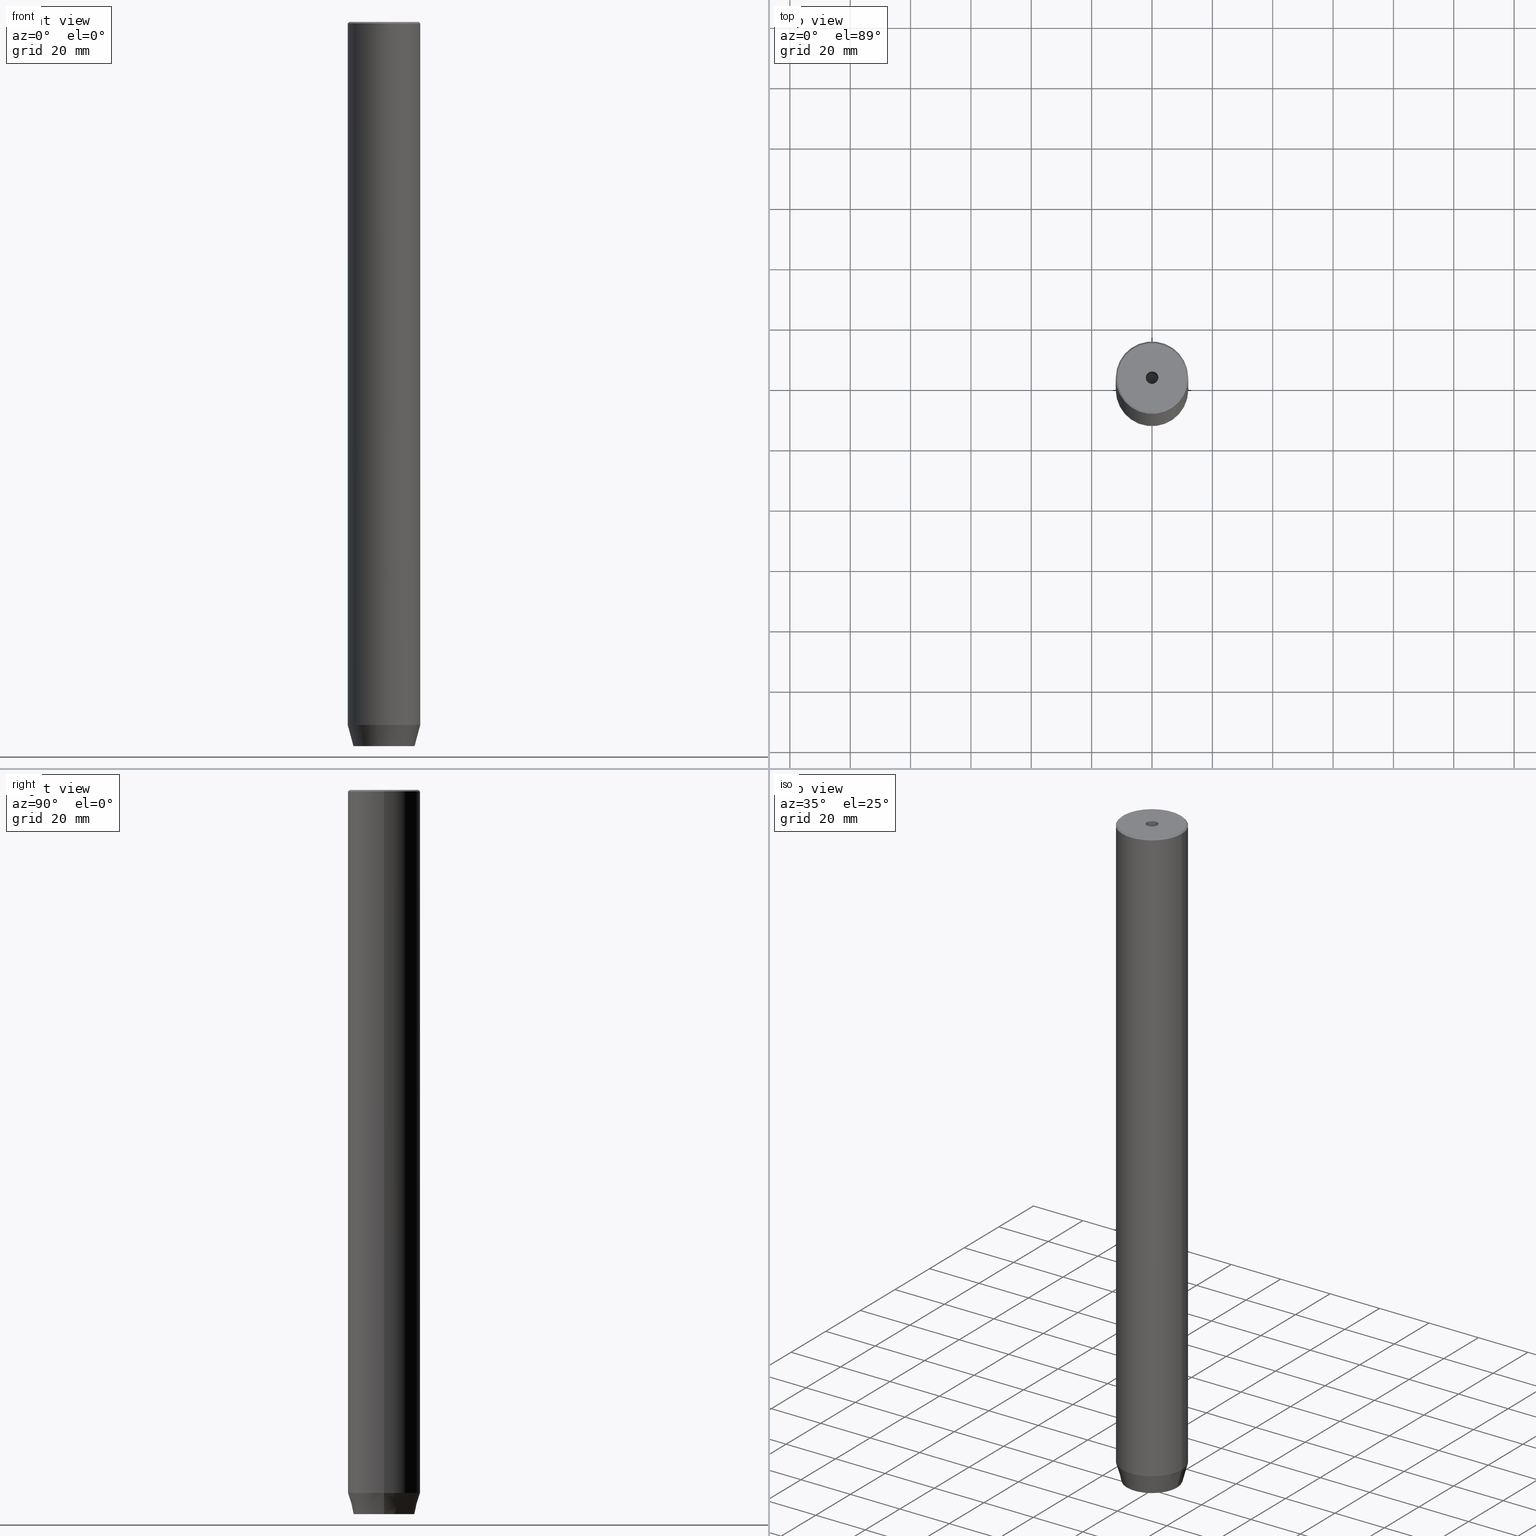
[diagram: canonical four-view strip — front | top / right | iso, engineering-drawing reading convention]
A machine part, canonical four-view strip (front | top / right | iso — engineering-drawing reading convention). The complete STEP part file that produces these views, byte-faithful:
ISO-10303-21;
HEADER;
FILE_DESCRIPTION (( 'STEP AP203' ),
    '1' );
FILE_NAME ('4e11.STEP',
    '2024-01-02T17:14:03',
    ( '' ),
    ( '' ),
    'SwSTEP 2.0',
    'SolidWorks 2019',
    '' );
FILE_SCHEMA (( 'CONFIG_CONTROL_DESIGN' ));
ENDSEC;

DATA;
#1 = DIRECTION ( 'NONE',  ( 1.000000000000000000, 0.000000000000000000, 0.000000000000000000 ) ) ;
#2 = DIRECTION ( 'NONE',  ( -0.000000000000000000, -0.000000000000000000, 1.000000000000000000 ) ) ;
#3 = DIRECTION ( 'NONE',  ( 1.000000000000000000, 0.000000000000000000, 0.000000000000000000 ) ) ;
#4 = ORIENTED_EDGE ( 'NONE', *, *, #515, .T. ) ;
#5 = ADVANCED_FACE ( 'NONE', ( #173 ), #56, .T. ) ;
#6 = DIRECTION ( 'NONE',  ( 1.000000000000000000, 0.000000000000000000, 0.000000000000000000 ) ) ;
#7 = VERTEX_POINT ( 'NONE', #294 ) ;
#8 = DIRECTION ( 'NONE',  ( 1.000000000000000000, 0.000000000000000000, 0.000000000000000000 ) ) ;
#9 = PERSON_AND_ORGANIZATION ( #483, #206 ) ;
#10 = EDGE_CURVE ( 'NONE', #177, #214, #108, .T. ) ;
#11 = VERTEX_POINT ( 'NONE', #81 ) ;
#12 = LOCAL_TIME ( 18, 14, 3.000000000000000000, #89 ) ;
#13 = PERSON_AND_ORGANIZATION_ROLE ( 'creator' ) ;
#14 = ORIENTED_EDGE ( 'NONE', *, *, #345, .F. ) ;
#15 = PERSON_AND_ORGANIZATION ( #483, #206 ) ;
#16 = ADVANCED_FACE ( 'NONE', ( #502 ), #346, .F. ) ;
#17 = VERTEX_POINT ( 'NONE', #356 ) ;
#18 = CARTESIAN_POINT ( 'NONE',  ( -2.000000000000000000, 3.464101615137754830, -237.1999999999999886 ) ) ;
#19 = PRODUCT_RELATED_PRODUCT_CATEGORY ( 'detail', '', ( #42 ) ) ;
#20 = VECTOR ( 'NONE', #73, 1000.000000000000114 ) ;
#21 = APPROVAL_PERSON_ORGANIZATION ( #491, #109, #570 ) ;
#22 = ORIENTED_EDGE ( 'NONE', *, *, #466, .T. ) ;
#23 = VECTOR ( 'NONE', #215, 999.9999999999998863 ) ;
#24 = ORIENTED_EDGE ( 'NONE', *, *, #542, .F. ) ;
#25 = FACE_OUTER_BOUND ( 'NONE', #306, .T. ) ;
#26 = DIRECTION ( 'NONE',  ( -1.000000000000000000, 0.000000000000000000, 0.000000000000000000 ) ) ;
#27 = ADVANCED_FACE ( 'NONE', ( #389 ), #227, .F. ) ;
#28 = LINE ( 'NONE', #341, #77 ) ;
#29 = VECTOR ( 'NONE', #287, 1000.000000000000000 ) ;
#30 = DIRECTION ( 'NONE',  ( -0.000000000000000000, -0.000000000000000000, -1.000000000000000000 ) ) ;
#31 = DIRECTION ( 'NONE',  ( 0.000000000000000000, -0.000000000000000000, 1.000000000000000000 ) ) ;
#32 = VERTEX_POINT ( 'NONE', #241 ) ;
#33 = DIRECTION ( 'NONE',  ( -0.8660254037844384856, 0.5000000000000002220, 0.000000000000000000 ) ) ;
#34 = EDGE_CURVE ( 'NONE', #507, #17, #427, .T. ) ;
#35 = DIRECTION ( 'NONE',  ( -0.000000000000000000, -0.000000000000000000, 1.000000000000000000 ) ) ;
#36 = DIRECTION ( 'NONE',  ( 1.000000000000000000, 0.000000000000000000, 0.000000000000000000 ) ) ;
#37 = VERTEX_POINT ( 'NONE', #302 ) ;
#38 = CARTESIAN_POINT ( 'NONE',  ( -12.00000000000000000, 1.469576158976823947E-15, -232.9999999999999716 ) ) ;
#39 = DIRECTION ( 'NONE',  ( -0.000000000000000000, -0.000000000000000000, 1.000000000000000000 ) ) ;
#40 = ORIENTED_EDGE ( 'NONE', *, *, #34, .T. ) ;
#41 = AXIS2_PLACEMENT_3D ( 'NONE', #88, #232, #187 ) ;
#42 = PRODUCT ( '4e11', '4e11', '', ( #197 ) ) ;
#43 = CARTESIAN_POINT ( 'NONE',  ( 0.000000000000000000, 0.000000000000000000, -1.990051048614449116E-16 ) ) ;
#44 = CC_DESIGN_PERSON_AND_ORGANIZATION_ASSIGNMENT ( #49, #13, ( #147 ) ) ;
#45 = DIRECTION ( 'NONE',  ( 1.000000000000000000, 0.000000000000000000, 0.000000000000000000 ) ) ;
#46 = APPROVAL_ROLE ( '' ) ;
#47 = CIRCLE ( 'NONE', #300, 12.00000000000000000 ) ;
#48 = AXIS2_PLACEMENT_3D ( 'NONE', #117, #76, #8 ) ;
#49 = PERSON_AND_ORGANIZATION ( #483, #206 ) ;
#50 = EDGE_CURVE ( 'NONE', #273, #210, #28, .T. ) ;
#51 = DATE_TIME_ROLE ( 'creation_date' ) ;
#52 = CARTESIAN_POINT ( 'NONE',  ( -4.000000000000000000, 2.309401076758503368, -240.0000000000000000 ) ) ;
#53 = VECTOR ( 'NONE', #457, 999.9999999999998863 ) ;
#54 = CIRCLE ( 'NONE', #511, 2.099999999999994760 ) ;
#55 = CALENDAR_DATE ( 2024, 2, 1 ) ;
#56 = CONICAL_SURFACE ( 'NONE', #331, 12.00000000000000000, 0.2617993877991500740 ) ;
#57 = ADVANCED_FACE ( 'NONE', ( #393 ), #124, .F. ) ;
#58 = ORIENTED_EDGE ( 'NONE', *, *, #282, .T. ) ;
#59 = FACE_OUTER_BOUND ( 'NONE', #555, .T. ) ;
#60 = ORIENTED_EDGE ( 'NONE', *, *, #196, .F. ) ;
#61 = CARTESIAN_POINT ( 'NONE',  ( -12.00000000000000000, 1.469576158976823947E-15, -232.9999999999999716 ) ) ;
#62 = ORIENTED_EDGE ( 'NONE', *, *, #450, .T. ) ;
#63 = VERTEX_POINT ( 'NONE', #125 ) ;
#64 = LOCAL_TIME ( 18, 14, 3.000000000000000000, #368 ) ;
#65 = EDGE_LOOP ( 'NONE', ( #342, #268, #244, #516 ) ) ;
#66 = EDGE_CURVE ( 'NONE', #273, #249, #303, .T. ) ;
#67 = CARTESIAN_POINT ( 'NONE',  ( 0.000000000000000000, 4.618802153517006737, -237.1999999999999886 ) ) ;
#68 = CARTESIAN_POINT ( 'NONE',  ( -4.000000000000000000, 0.000000000000000000, -237.1999999999999886 ) ) ;
#69 = ORIENTED_EDGE ( 'NONE', *, *, #551, .F. ) ;
#70 = VECTOR ( 'NONE', #231, 1000.000000000000000 ) ;
#71 = LINE ( 'NONE', #262, #384 ) ;
#72 = VECTOR ( 'NONE', #33, 1000.000000000000114 ) ;
#73 = DIRECTION ( 'NONE',  ( -0.8660254037844384856, 0.5000000000000002220, 0.000000000000000000 ) ) ;
#74 = EDGE_LOOP ( 'NONE', ( #62, #473, #308, #103 ) ) ;
#75 = EDGE_CURVE ( 'NONE', #32, #7, #417, .T. ) ;
#76 = DIRECTION ( 'NONE',  ( 0.000000000000000000, 0.000000000000000000, 1.000000000000000000 ) ) ;
#77 = VECTOR ( 'NONE', #293, 1000.000000000000000 ) ;
#78 = EDGE_LOOP ( 'NONE', ( #463, #413, #531, #358 ) ) ;
#79 = CARTESIAN_POINT ( 'NONE',  ( -2.000000000000000000, 3.464101615137754830, -237.1999999999999886 ) ) ;
#80 = DIRECTION ( 'NONE',  ( 1.000000000000000000, 0.000000000000000000, 0.000000000000000000 ) ) ;
#81 = CARTESIAN_POINT ( 'NONE',  ( -4.000000000000000000, -2.309401076758503368, -240.0000000000000000 ) ) ;
#82 = DIRECTION ( 'NONE',  ( -0.000000000000000000, -0.000000000000000000, 1.000000000000000000 ) ) ;
#83 = CARTESIAN_POINT ( 'NONE',  ( 0.000000000000000000, 0.000000000000000000, 0.000000000000000000 ) ) ;
#84 = EDGE_CURVE ( 'NONE', #150, #475, #377, .T. ) ;
#85 = CARTESIAN_POINT ( 'NONE',  ( -4.000000000000000000, -2.309401076758503368, -237.1999999999999886 ) ) ;
#86 = CARTESIAN_POINT ( 'NONE',  ( 0.000000000000000000, 0.000000000000000000, -240.0000000000000000 ) ) ;
#87 = ORIENTED_EDGE ( 'NONE', *, *, #515, .F. ) ;
#88 = CARTESIAN_POINT ( 'NONE',  ( 0.000000000000000000, 0.000000000000000000, 0.000000000000000000 ) ) ;
#89 = COORDINATED_UNIVERSAL_TIME_OFFSET ( 1, 0, .AHEAD. ) ;
#90 = LINE ( 'NONE', #549, #72 ) ;
#91 = DIRECTION ( 'NONE',  ( 0.5000000000000003331, -0.8660254037844385966, 0.000000000000000000 ) ) ;
#92 = APPLICATION_CONTEXT ( 'configuration controlled 3d designs of mechanical parts and assemblies' ) ;
#93 = EDGE_CURVE ( 'NONE', #387, #7, #353, .T. ) ;
#94 = CONICAL_SURFACE ( 'NONE', #289, 11.50000000000000888, 0.7853981633974621568 ) ;
#95 = CARTESIAN_POINT ( 'NONE',  ( 4.000000000000000000, -2.309401076758502480, -240.0000000000000000 ) ) ;
#96 = ADVANCED_FACE ( 'NONE', ( #295 ), #424, .F. ) ;
#97 = PERSON_AND_ORGANIZATION_ROLE ( 'creator' ) ;
#98 = CARTESIAN_POINT ( 'NONE',  ( 0.000000000000000000, 0.000000000000000000, 0.000000000000000000 ) ) ;
#99 = VECTOR ( 'NONE', #360, 1000.000000000000000 ) ;
#100 = VERTEX_POINT ( 'NONE', #426 ) ;
#101 = EDGE_LOOP ( 'NONE', ( #458, #69, #438, #184, #425, #464 ) ) ;
#102 = LINE ( 'NONE', #128, #429 ) ;
#103 = ORIENTED_EDGE ( 'NONE', *, *, #307, .T. ) ;
#104 = ADVANCED_FACE ( 'NONE', ( #25 ), #343, .T. ) ;
#105 = PLANE ( 'NONE',  #498 ) ;
#106 = CIRCLE ( 'NONE', #568, 12.00000000000000000 ) ;
#107 = AXIS2_PLACEMENT_3D ( 'NONE', #43, #404, #180 ) ;
#108 = LINE ( 'NONE', #403, #441 ) ;
#109 = APPROVAL ( #213, 'NEUR�EN�' ) ;
#110 = DIRECTION ( 'NONE',  ( -0.5000000000000003331, -0.8660254037844385966, 0.000000000000000000 ) ) ;
#111 = FACE_OUTER_BOUND ( 'NONE', #586, .T. ) ;
#112 = ORIENTED_EDGE ( 'NONE', *, *, #50, .F. ) ;
#113 = CARTESIAN_POINT ( 'NONE',  ( 0.000000000000000000, 0.000000000000000000, -30.00000000000000000 ) ) ;
#114 = EDGE_CURVE ( 'NONE', #374, #177, #162, .T. ) ;
#115 = DIRECTION ( 'NONE',  ( -0.000000000000000000, -0.000000000000000000, 1.000000000000000000 ) ) ;
#116 = ORIENTED_EDGE ( 'NONE', *, *, #225, .F. ) ;
#117 = CARTESIAN_POINT ( 'NONE',  ( 0.000000000000000000, 0.000000000000000000, 0.000000000000000000 ) ) ;
#118 = DIRECTION ( 'NONE',  ( 0.000000000000000000, 0.000000000000000000, -1.000000000000000000 ) ) ;
#119 = CIRCLE ( 'NONE', #535, 11.50000000000000888 ) ;
#120 = CARTESIAN_POINT ( 'NONE',  ( 0.000000000000000000, 0.000000000000000000, 0.000000000000000000 ) ) ;
#121 = CC_DESIGN_APPROVAL ( #415, ( #147 ) ) ;
#122 = DIRECTION ( 'NONE',  ( -0.000000000000000000, -0.000000000000000000, 1.000000000000000000 ) ) ;
#123 = ORIENTED_EDGE ( 'NONE', *, *, #132, .T. ) ;
#124 = CONICAL_SURFACE ( 'NONE', #209, 2.099999999999994760, 1.029744258676652535 ) ;
#125 = CARTESIAN_POINT ( 'NONE',  ( 10.12435565298213547, 0.000000000000000000, -240.0000000000000000 ) ) ;
#126 = DIRECTION ( 'NONE',  ( -0.000000000000000000, -0.000000000000000000, -1.000000000000000000 ) ) ;
#127 = DIRECTION ( 'NONE',  ( 0.000000000000000000, 1.000000000000000000, 0.000000000000000000 ) ) ;
#128 = CARTESIAN_POINT ( 'NONE',  ( 12.00000000000000000, 0.000000000000000000, -232.9999999999999716 ) ) ;
#129 = CYLINDRICAL_SURFACE ( 'NONE', #41, 12.00000000000000000 ) ;
#130 = ORIENTED_EDGE ( 'NONE', *, *, #259, .T. ) ;
#131 = DIRECTION ( 'NONE',  ( -0.000000000000000000, -0.000000000000000000, 1.000000000000000000 ) ) ;
#132 = EDGE_CURVE ( 'NONE', #348, #151, #292, .T. ) ;
#133 = LINE ( 'NONE', #443, #439 ) ;
#134 = CARTESIAN_POINT ( 'NONE',  ( -4.000000000000000000, 0.000000000000000000, -240.0000000000000000 ) ) ;
#135 = EDGE_LOOP ( 'NONE', ( #378, #571, #462 ) ) ;
#136 = VECTOR ( 'NONE', #82, 1000.000000000000000 ) ;
#137 = CONICAL_SURFACE ( 'NONE', #193, 11.50000000000000888, 0.7853981633974621568 ) ;
#138 = ORIENTED_EDGE ( 'NONE', *, *, #307, .F. ) ;
#139 = DIRECTION ( 'NONE',  ( -0.5000000000000000000, 0.8660254037844387076, 0.000000000000000000 ) ) ;
#140 = APPROVAL_ROLE ( '' ) ;
#141 = CARTESIAN_POINT ( 'NONE',  ( 0.000000000000000000, 0.000000000000000000, -240.0000000000000000 ) ) ;
#142 = ADVANCED_FACE ( 'NONE', ( #164, #522 ), #105, .T. ) ;
#143 = CARTESIAN_POINT ( 'NONE',  ( 2.099999999999994760, 0.000000000000000000, -30.00000000000000000 ) ) ;
#144 = DIRECTION ( 'NONE',  ( 0.000000000000000000, -1.000000000000000000, 0.000000000000000000 ) ) ;
#145 = AXIS2_PLACEMENT_3D ( 'NONE', #412, #324, #45 ) ;
#146 = DIRECTION ( 'NONE',  ( -0.000000000000000000, -0.000000000000000000, -1.000000000000000000 ) ) ;
#147 = PRODUCT_DEFINITION ( 'NEZN�M�', '', #440, #410 ) ;
#148 = ORIENTED_EDGE ( 'NONE', *, *, #320, .F. ) ;
#149 = LINE ( 'NONE', #513, #398 ) ;
#150 = VERTEX_POINT ( 'NONE', #527 ) ;
#151 = VERTEX_POINT ( 'NONE', #260 ) ;
#152 = ORIENTED_EDGE ( 'NONE', *, *, #542, .T. ) ;
#153 = AXIS2_PLACEMENT_3D ( 'NONE', #141, #448, #198 ) ;
#154 = AXIS2_PLACEMENT_3D ( 'NONE', #83, #31, #478 ) ;
#155 = CLOSED_SHELL ( 'NONE', ( #388, #57, #572, #359, #493, #142, #566, #327, #5, #369, #16, #217, #96, #27, #185, #501, #104, #250, #381 ) ) ;
#156 = APPLICATION_CONTEXT ( 'configuration controlled 3d designs of mechanical parts and assemblies' ) ;
#157 = EDGE_LOOP ( 'NONE', ( #544, #58, #167, #112 ) ) ;
#158 = PERSON_AND_ORGANIZATION ( #483, #206 ) ;
#159 = EDGE_CURVE ( 'NONE', #257, #11, #269, .T. ) ;
#160 = LINE ( 'NONE', #61, #29 ) ;
#161 = ORIENTED_EDGE ( 'NONE', *, *, #466, .F. ) ;
#162 = LINE ( 'NONE', #422, #199 ) ;
#163 = CC_DESIGN_PERSON_AND_ORGANIZATION_ASSIGNMENT ( #335, #518, ( #399 ) ) ;
#164 = FACE_BOUND ( 'NONE', #101, .T. ) ;
#165 = AXIS2_PLACEMENT_3D ( 'NONE', #251, #118, #254 ) ;
#166 = DIRECTION ( 'NONE',  ( -0.8660254037844385966, -0.4999999999999999445, 0.000000000000000000 ) ) ;
#167 = ORIENTED_EDGE ( 'NONE', *, *, #409, .T. ) ;
#168 = CARTESIAN_POINT ( 'NONE',  ( -11.50000000000000888, 0.000000000000000000, 0.000000000000000000 ) ) ;
#169 = EDGE_CURVE ( 'NONE', #569, #214, #497, .T. ) ;
#170 = DIRECTION ( 'NONE',  ( 1.000000000000000000, 0.000000000000000000, 0.000000000000000000 ) ) ;
#171 = DIRECTION ( 'NONE',  ( 1.000000000000000000, 0.000000000000000000, 0.000000000000000000 ) ) ;
#172 = ORIENTED_EDGE ( 'NONE', *, *, #282, .F. ) ;
#173 = FACE_OUTER_BOUND ( 'NONE', #299, .T. ) ;
#174 = CARTESIAN_POINT ( 'NONE',  ( -2.000000000000000888, -3.464101615137754386, -237.1999999999999886 ) ) ;
#175 = PRODUCT_DEFINITION_SHAPE ( 'NONE', 'NONE',  #147 ) ;
#176 = CARTESIAN_POINT ( 'NONE',  ( 4.000000000000000000, -2.309401076758502480, -237.1999999999999886 ) ) ;
#177 = VERTEX_POINT ( 'NONE', #397 ) ;
#178 = CALENDAR_DATE ( 2024, 2, 1 ) ;
#179 = AXIS2_PLACEMENT_3D ( 'NONE', #120, #35, #171 ) ;
#180 = DIRECTION ( 'NONE',  ( 1.000000000000000000, 0.000000000000000000, 0.000000000000000000 ) ) ;
#181 = ORIENTED_EDGE ( 'NONE', *, *, #66, .F. ) ;
#182 = DATE_AND_TIME ( #178, #537 ) ;
#183 = DIRECTION ( 'NONE',  ( 0.5000000000000001110, 0.8660254037844385966, -0.000000000000000000 ) ) ;
#184 = ORIENTED_EDGE ( 'NONE', *, *, #132, .F. ) ;
#185 = ADVANCED_FACE ( 'NONE', ( #194 ), #492, .F. ) ;
#186 = CARTESIAN_POINT ( 'NONE',  ( 0.000000000000000000, 0.000000000000000000, -0.4999999999999779066 ) ) ;
#187 = DIRECTION ( 'NONE',  ( 1.000000000000000000, 0.000000000000000000, 0.000000000000000000 ) ) ;
#188 = VERTEX_POINT ( 'NONE', #392 ) ;
#189 = CARTESIAN_POINT ( 'NONE',  ( 0.000000000000000000, 0.000000000000000000, -1.990051048614449116E-16 ) ) ;
#190 = CARTESIAN_POINT ( 'NONE',  ( -4.000000000000000000, -2.309401076758503368, -237.1999999999999886 ) ) ;
#191 = DIRECTION ( 'NONE',  ( -0.8660254037844385966, 0.5000000000000001110, 0.000000000000000000 ) ) ;
#192 = VECTOR ( 'NONE', #30, 1000.000000000000000 ) ;
#193 = AXIS2_PLACEMENT_3D ( 'NONE', #406, #243, #284 ) ;
#194 = FACE_OUTER_BOUND ( 'NONE', #78, .T. ) ;
#195 = VECTOR ( 'NONE', #261, 1000.000000000000114 ) ;
#196 = EDGE_CURVE ( 'NONE', #362, #210, #349, .T. ) ;
#197 = MECHANICAL_CONTEXT ( 'NONE', #92, 'mechanical' ) ;
#198 = DIRECTION ( 'NONE',  ( 1.000000000000000000, 0.000000000000000000, 0.000000000000000000 ) ) ;
#199 = VECTOR ( 'NONE', #211, 1000.000000000000000 ) ;
#200 = VERTEX_POINT ( 'NONE', #52 ) ;
#201 = DATE_AND_TIME ( #276, #12 ) ;
#202 = EDGE_LOOP ( 'NONE', ( #485, #24 ) ) ;
#203 = EDGE_LOOP ( 'NONE', ( #496, #323, #181, #116 ) ) ;
#204 = CIRCLE ( 'NONE', #179, 11.50000000000000888 ) ;
#205 = CARTESIAN_POINT ( 'NONE',  ( -2.099999999999994760, 2.571758278209435054E-16, -30.00000000000000000 ) ) ;
#206 = ORGANIZATION ( 'NEUR�EN�', 'NEUR�EN�', '' ) ;
#207 = EDGE_CURVE ( 'NONE', #37, #249, #160, .T. ) ;
#208 = DIRECTION ( 'NONE',  ( 0.000000000000000000, 0.000000000000000000, -1.000000000000000000 ) ) ;
#209 = AXIS2_PLACEMENT_3D ( 'NONE', #578, #434, #170 ) ;
#210 = VERTEX_POINT ( 'NONE', #216 ) ;
#211 = DIRECTION ( 'NONE',  ( 0.8660254037844385966, -0.5000000000000001110, 0.000000000000000000 ) ) ;
#212 = EDGE_LOOP ( 'NONE', ( #22, #265 ) ) ;
#213 = APPROVAL_STATUS ( 'not_yet_approved' ) ;
#214 = VERTEX_POINT ( 'NONE', #512 ) ;
#215 = DIRECTION ( 'NONE',  ( -0.7071067811865574537, 0.000000000000000000, -0.7071067811865376918 ) ) ;
#216 = CARTESIAN_POINT ( 'NONE',  ( 12.00000000000000000, 0.000000000000000000, -0.4999999999999779066 ) ) ;
#217 = ADVANCED_FACE ( 'NONE', ( #111 ), #333, .F. ) ;
#218 = CIRCLE ( 'NONE', #153, 10.12435565298213547 ) ;
#219 = FACE_OUTER_BOUND ( 'NONE', #330, .T. ) ;
#220 = LOCAL_TIME ( 18, 14, 3.000000000000000000, #545 ) ;
#221 = CARTESIAN_POINT ( 'NONE',  ( 2.099999999999996980, 0.000000000000000000, 0.000000000000000000 ) ) ;
#222 = CARTESIAN_POINT ( 'NONE',  ( 4.336808689942017736E-16, -4.618802153517006737, -237.1999999999999886 ) ) ;
#223 = CARTESIAN_POINT ( 'NONE',  ( 0.000000000000000000, 0.000000000000000000, 0.000000000000000000 ) ) ;
#224 = DIRECTION ( 'NONE',  ( 1.000000000000000000, 0.000000000000000000, 0.000000000000000000 ) ) ;
#225 = EDGE_CURVE ( 'NONE', #63, #273, #102, .T. ) ;
#226 = AXIS2_PLACEMENT_3D ( 'NONE', #189, #131, #446 ) ;
#227 = PLANE ( 'NONE',  #285 ) ;
#228 = FACE_OUTER_BOUND ( 'NONE', #135, .T. ) ;
#229 = FACE_BOUND ( 'NONE', #202, .T. ) ;
#230 = ORIENTED_EDGE ( 'NONE', *, *, #559, .T. ) ;
#231 = DIRECTION ( 'NONE',  ( -0.000000000000000000, -0.000000000000000000, -1.000000000000000000 ) ) ;
#232 = DIRECTION ( 'NONE',  ( -0.000000000000000000, -0.000000000000000000, 1.000000000000000000 ) ) ;
#233 = CARTESIAN_POINT ( 'NONE',  ( 11.50000000000000888, 1.438959988998140752E-15, 0.000000000000000000 ) ) ;
#234 = CARTESIAN_POINT ( 'NONE',  ( -2.000000000000000888, -3.464101615137754386, -240.0000000000000000 ) ) ;
#235 = ORIENTED_EDGE ( 'NONE', *, *, #259, .F. ) ;
#236 = EDGE_CURVE ( 'NONE', #7, #188, #490, .T. ) ;
#237 = CONICAL_SURFACE ( 'NONE', #313, 2.099999999999994760, 1.029744258676652535 ) ;
#238 = ORIENTED_EDGE ( 'NONE', *, *, #93, .F. ) ;
#239 =( GEOMETRIC_REPRESENTATION_CONTEXT ( 3 ) GLOBAL_UNCERTAINTY_ASSIGNED_CONTEXT ( ( #321 ) ) GLOBAL_UNIT_ASSIGNED_CONTEXT ( ( #556, #581, #488 ) ) REPRESENTATION_CONTEXT ( 'NONE', 'WORKASPACE' ) );
#240 = LINE ( 'NONE', #408, #567 ) ;
#241 = CARTESIAN_POINT ( 'NONE',  ( -7.656934449090954900E-15, 0.000000000000000000, -31.26180729995787289 ) ) ;
#242 = PERSON_AND_ORGANIZATION ( #483, #206 ) ;
#243 = DIRECTION ( 'NONE',  ( 0.000000000000000000, 0.000000000000000000, -1.000000000000000000 ) ) ;
#244 = ORIENTED_EDGE ( 'NONE', *, *, #428, .F. ) ;
#245 = EDGE_CURVE ( 'NONE', #362, #150, #204, .T. ) ;
#246 = AXIS2_PLACEMENT_3D ( 'NONE', #68, #465, #519 ) ;
#247 = EDGE_LOOP ( 'NONE', ( #14, #479, #326 ) ) ;
#248 = ORIENTED_EDGE ( 'NONE', *, *, #236, .F. ) ;
#249 = VERTEX_POINT ( 'NONE', #38 ) ;
#250 = ADVANCED_FACE ( 'NONE', ( #228 ), #237, .F. ) ;
#251 = CARTESIAN_POINT ( 'NONE',  ( 0.000000000000000000, 0.000000000000000000, -237.1999999999999886 ) ) ;
#252 = ORIENTED_EDGE ( 'NONE', *, *, #551, .T. ) ;
#253 = EDGE_LOOP ( 'NONE', ( #278, #565 ) ) ;
#254 = DIRECTION ( 'NONE',  ( -1.000000000000000000, 0.000000000000000000, -0.000000000000000000 ) ) ;
#255 = ORIENTED_EDGE ( 'NONE', *, *, #84, .F. ) ;
#256 = PERSON_AND_ORGANIZATION_ROLE ( 'design_owner' ) ;
#257 = VERTEX_POINT ( 'NONE', #85 ) ;
#258 = FACE_OUTER_BOUND ( 'NONE', #291, .T. ) ;
#259 = EDGE_CURVE ( 'NONE', #257, #100, #582, .T. ) ;
#260 = CARTESIAN_POINT ( 'NONE',  ( 4.336808689942017736E-16, -4.618802153517006737, -240.0000000000000000 ) ) ;
#261 = DIRECTION ( 'NONE',  ( -0.8660254037844384856, -0.5000000000000002220, 0.000000000000000000 ) ) ;
#262 = CARTESIAN_POINT ( 'NONE',  ( -12.00000000000000000, 1.469576158976823947E-15, 0.000000000000000000 ) ) ;
#263 = AXIS2_PLACEMENT_3D ( 'NONE', #418, #296, #3 ) ;
#264 = DIRECTION ( 'NONE',  ( 0.2588190451025213501, 0.000000000000000000, 0.9659258262890680902 ) ) ;
#265 = ORIENTED_EDGE ( 'NONE', *, *, #245, .T. ) ;
#266 = CARTESIAN_POINT ( 'NONE',  ( 2.000000000000000888, -3.464101615137754386, -237.1999999999999886 ) ) ;
#267 = DIRECTION ( 'NONE',  ( -0.000000000000000000, -0.000000000000000000, 1.000000000000000000 ) ) ;
#268 = ORIENTED_EDGE ( 'NONE', *, *, #159, .F. ) ;
#269 = LINE ( 'NONE', #190, #99 ) ;
#270 = CC_DESIGN_PERSON_AND_ORGANIZATION_ASSIGNMENT ( #158, #256, ( #42 ) ) ;
#271 = DIRECTION ( 'NONE',  ( 0.000000000000000000, 1.000000000000000000, 0.000000000000000000 ) ) ;
#272 = CARTESIAN_POINT ( 'NONE',  ( -12.00000000000000000, 1.469576158976823947E-15, -0.4999999999999779066 ) ) ;
#273 = VERTEX_POINT ( 'NONE', #530 ) ;
#274 = CARTESIAN_POINT ( 'NONE',  ( 0.000000000000000000, 0.000000000000000000, -0.4999999999999779066 ) ) ;
#275 = CC_DESIGN_DATE_AND_TIME_ASSIGNMENT ( #454, #51, ( #147 ) ) ;
#276 = CALENDAR_DATE ( 2024, 2, 1 ) ;
#277 = ORIENTED_EDGE ( 'NONE', *, *, #236, .T. ) ;
#278 = ORIENTED_EDGE ( 'NONE', *, *, #508, .F. ) ;
#279 = VECTOR ( 'NONE', #336, 1000.000000000000114 ) ;
#280 = VECTOR ( 'NONE', #467, 1000.000000000000000 ) ;
#281 = CALENDAR_DATE ( 2024, 2, 1 ) ;
#282 = EDGE_CURVE ( 'NONE', #249, #475, #71, .T. ) ;
#283 = CARTESIAN_POINT ( 'NONE',  ( 11.50000000000000888, 1.408343819019457359E-15, 0.000000000000000000 ) ) ;
#284 = DIRECTION ( 'NONE',  ( -1.000000000000000000, 0.000000000000000000, 0.000000000000000000 ) ) ;
#285 = AXIS2_PLACEMENT_3D ( 'NONE', #266, #91, #352 ) ;
#286 = EDGE_CURVE ( 'NONE', #387, #430, #394, .T. ) ;
#287 = DIRECTION ( 'NONE',  ( -0.2588190451025213501, 3.169619151431772337E-17, 0.9659258262890680902 ) ) ;
#288 = ORIENTED_EDGE ( 'NONE', *, *, #50, .T. ) ;
#289 = AXIS2_PLACEMENT_3D ( 'NONE', #98, #208, #26 ) ;
#290 = DIRECTION ( 'NONE',  ( 1.000000000000000000, 0.000000000000000000, 0.000000000000000000 ) ) ;
#291 = EDGE_LOOP ( 'NONE', ( #248, #238, #548, #560 ) ) ;
#292 = LINE ( 'NONE', #380, #279 ) ;
#293 = DIRECTION ( 'NONE',  ( -0.000000000000000000, -0.000000000000000000, 1.000000000000000000 ) ) ;
#294 = CARTESIAN_POINT ( 'NONE',  ( -2.099999999999994760, 2.571758278209435054E-16, -30.00000000000000000 ) ) ;
#295 = FACE_OUTER_BOUND ( 'NONE', #65, .T. ) ;
#296 = DIRECTION ( 'NONE',  ( -0.000000000000000000, -0.000000000000000000, 1.000000000000000000 ) ) ;
#297 = CARTESIAN_POINT ( 'NONE',  ( -2.099999999999996980, 2.571758278209438013E-16, 0.000000000000000000 ) ) ;
#298 = CARTESIAN_POINT ( 'NONE',  ( 0.000000000000000000, 0.000000000000000000, -232.9999999999999716 ) ) ;
#299 = EDGE_LOOP ( 'NONE', ( #431, #379, #517, #419 ) ) ;
#300 = AXIS2_PLACEMENT_3D ( 'NONE', #186, #311, #6 ) ;
#301 = AXIS2_PLACEMENT_3D ( 'NONE', #298, #314, #80 ) ;
#302 = CARTESIAN_POINT ( 'NONE',  ( -10.12435565298213547, 1.354726066681111050E-15, -240.0000000000000000 ) ) ;
#303 = CIRCLE ( 'NONE', #538, 12.00000000000000000 ) ;
#304 = DIRECTION ( 'NONE',  ( 1.000000000000000000, 0.000000000000000000, 0.000000000000000000 ) ) ;
#305 = DIRECTION ( 'NONE',  ( 1.000000000000000000, 0.000000000000000000, 0.000000000000000000 ) ) ;
#306 = EDGE_LOOP ( 'NONE', ( #583, #534, #382, #40, #553, #130 ) ) ;
#307 = EDGE_CURVE ( 'NONE', #100, #200, #133, .T. ) ;
#308 = ORIENTED_EDGE ( 'NONE', *, *, #373, .F. ) ;
#309 = DATE_TIME_ROLE ( 'classification_date' ) ;
#310 = CARTESIAN_POINT ( 'NONE',  ( 2.000000000000000444, 3.464101615137754386, -237.1999999999999886 ) ) ;
#311 = DIRECTION ( 'NONE',  ( 0.000000000000000000, 0.000000000000000000, -1.000000000000000000 ) ) ;
#312 = EDGE_CURVE ( 'NONE', #507, #348, #354, .T. ) ;
#313 = AXIS2_PLACEMENT_3D ( 'NONE', #361, #482, #494 ) ;
#314 = DIRECTION ( 'NONE',  ( -0.000000000000000000, -0.000000000000000000, 1.000000000000000000 ) ) ;
#315 = ADVANCED_BREP_SHAPE_REPRESENTATION ( '4e11', ( #552, #48 ), #239 ) ;
#316 = APPROVAL_DATE_TIME ( #562, #470 ) ;
#317 = AXIS2_PLACEMENT_3D ( 'NONE', #310, #183, #191 ) ;
#318 = VECTOR ( 'NONE', #504, 1000.000000000000000 ) ;
#319 = LINE ( 'NONE', #558, #375 ) ;
#320 = EDGE_CURVE ( 'NONE', #17, #151, #347, .T. ) ;
#321 = UNCERTAINTY_MEASURE_WITH_UNIT (LENGTH_MEASURE( 1.000000000000000082E-05 ), #556, 'distance_accuracy_value', 'NONE');
#322 = LINE ( 'NONE', #143, #480 ) ;
#323 = ORIENTED_EDGE ( 'NONE', *, *, #207, .T. ) ;
#324 = DIRECTION ( 'NONE',  ( -0.000000000000000000, -0.000000000000000000, 1.000000000000000000 ) ) ;
#325 = PERSON_AND_ORGANIZATION ( #483, #206 ) ;
#326 = ORIENTED_EDGE ( 'NONE', *, *, #528, .T. ) ;
#327 = ADVANCED_FACE ( 'NONE', ( #546 ), #390, .T. ) ;
#328 = VECTOR ( 'NONE', #579, 1000.000000000000000 ) ;
#329 = AXIS2_PLACEMENT_3D ( 'NONE', #366, #2, #405 ) ;
#330 = EDGE_LOOP ( 'NONE', ( #521, #277, #152, #541 ) ) ;
#331 = AXIS2_PLACEMENT_3D ( 'NONE', #396, #432, #526 ) ;
#332 = EDGE_LOOP ( 'NONE', ( #172, #230, #288, #4 ) ) ;
#333 = PLANE ( 'NONE',  #246 ) ;
#334 = ORIENTED_EDGE ( 'NONE', *, *, #84, .T. ) ;
#335 = PERSON_AND_ORGANIZATION ( #483, #206 ) ;
#336 = DIRECTION ( 'NONE',  ( -0.8660254037844384856, -0.5000000000000002220, 0.000000000000000000 ) ) ;
#337 = ORIENTED_EDGE ( 'NONE', *, *, #34, .F. ) ;
#338 = EDGE_CURVE ( 'NONE', #37, #63, #218, .T. ) ;
#339 = DIRECTION ( 'NONE',  ( -1.000000000000000000, 0.000000000000000000, -0.000000000000000000 ) ) ;
#340 = APPROVAL_PERSON_ORGANIZATION ( #242, #470, #140 ) ;
#341 = CARTESIAN_POINT ( 'NONE',  ( 12.00000000000000000, 0.000000000000000000, 0.000000000000000000 ) ) ;
#342 = ORIENTED_EDGE ( 'NONE', *, *, #474, .T. ) ;
#343 = PLANE ( 'NONE',  #165 ) ;
#344 = CYLINDRICAL_SURFACE ( 'NONE', #329, 2.099999999999996980 ) ;
#345 = EDGE_CURVE ( 'NONE', #32, #387, #322, .T. ) ;
#346 = PLANE ( 'NONE',  #576 ) ;
#347 = LINE ( 'NONE', #222, #70 ) ;
#348 = VERTEX_POINT ( 'NONE', #95 ) ;
#349 = LINE ( 'NONE', #283, #53 ) ;
#350 = AXIS2_PLACEMENT_3D ( 'NONE', #433, #543, #587 ) ;
#351 = APPROVAL_PERSON_ORGANIZATION ( #325, #415, #46 ) ;
#352 = DIRECTION ( 'NONE',  ( 0.8660254037844384856, 0.5000000000000002220, 0.000000000000000000 ) ) ;
#353 = CIRCLE ( 'NONE', #421, 2.099999999999994760 ) ;
#354 = LINE ( 'NONE', #176, #192 ) ;
#355 = FACE_OUTER_BOUND ( 'NONE', #391, .T. ) ;
#356 = CARTESIAN_POINT ( 'NONE',  ( 4.336808689942017736E-16, -4.618802153517006737, -237.1999999999999886 ) ) ;
#357 = DIRECTION ( 'NONE',  ( 0.000000000000000000, 0.000000000000000000, -1.000000000000000000 ) ) ;
#358 = ORIENTED_EDGE ( 'NONE', *, *, #10, .T. ) ;
#359 = ADVANCED_FACE ( 'NONE', ( #456 ), #524, .T. ) ;
#360 = DIRECTION ( 'NONE',  ( -0.000000000000000000, -0.000000000000000000, -1.000000000000000000 ) ) ;
#361 = CARTESIAN_POINT ( 'NONE',  ( 0.000000000000000000, 0.000000000000000000, -30.00000000000000000 ) ) ;
#362 = VERTEX_POINT ( 'NONE', #233 ) ;
#363 = CC_DESIGN_DATE_AND_TIME_ASSIGNMENT ( #182, #309, ( #399 ) ) ;
#364 = VECTOR ( 'NONE', #271, 1000.000000000000000 ) ;
#365 = CARTESIAN_POINT ( 'NONE',  ( 4.000000000000000000, 0.000000000000000000, -240.0000000000000000 ) ) ;
#366 = CARTESIAN_POINT ( 'NONE',  ( 0.000000000000000000, 0.000000000000000000, 0.000000000000000000 ) ) ;
#367 = APPROVAL_DATE_TIME ( #201, #415 ) ;
#368 = COORDINATED_UNIVERSAL_TIME_OFFSET ( 1, 0, .AHEAD. ) ;
#369 = ADVANCED_FACE ( 'NONE', ( #59 ), #94, .T. ) ;
#370 = AXIS2_PLACEMENT_3D ( 'NONE', #86, #39, #305 ) ;
#371 = ORIENTED_EDGE ( 'NONE', *, *, #159, .T. ) ;
#372 = COORDINATED_UNIVERSAL_TIME_OFFSET ( 1, 0, .AHEAD. ) ;
#373 = EDGE_CURVE ( 'NONE', #100, #374, #564, .T. ) ;
#374 = VERTEX_POINT ( 'NONE', #67 ) ;
#375 = VECTOR ( 'NONE', #146, 1000.000000000000000 ) ;
#376 = ORIENTED_EDGE ( 'NONE', *, *, #196, .T. ) ;
#377 = LINE ( 'NONE', #168, #23 ) ;
#378 = ORIENTED_EDGE ( 'NONE', *, *, #75, .F. ) ;
#379 = ORIENTED_EDGE ( 'NONE', *, *, #338, .T. ) ;
#380 = CARTESIAN_POINT ( 'NONE',  ( 2.000000000000000888, -3.464101615137754386, -240.0000000000000000 ) ) ;
#381 = ADVANCED_FACE ( 'NONE', ( #258 ), #573, .F. ) ;
#382 = ORIENTED_EDGE ( 'NONE', *, *, #442, .T. ) ;
#383 = DIRECTION ( 'NONE',  ( 0.000000000000000000, 0.000000000000000000, -1.000000000000000000 ) ) ;
#384 = VECTOR ( 'NONE', #400, 1000.000000000000000 ) ;
#385 = CIRCLE ( 'NONE', #301, 12.00000000000000000 ) ;
#386 = CARTESIAN_POINT ( 'NONE',  ( 2.000000000000000888, -3.464101615137754386, -237.1999999999999886 ) ) ;
#387 = VERTEX_POINT ( 'NONE', #487 ) ;
#388 = ADVANCED_FACE ( 'NONE', ( #219 ), #344, .F. ) ;
#389 = FACE_OUTER_BOUND ( 'NONE', #416, .T. ) ;
#390 = CYLINDRICAL_SURFACE ( 'NONE', #460, 12.00000000000000000 ) ;
#391 = EDGE_LOOP ( 'NONE', ( #407, #376, #563, #255 ) ) ;
#392 = CARTESIAN_POINT ( 'NONE',  ( -2.099999999999998757, 2.571758278209440478E-16, -1.990051048614449116E-16 ) ) ;
#393 = FACE_OUTER_BOUND ( 'NONE', #247, .T. ) ;
#394 = LINE ( 'NONE', #221, #328 ) ;
#395 = PLANE ( 'NONE',  #154 ) ;
#396 = CARTESIAN_POINT ( 'NONE',  ( 0.000000000000000000, 0.000000000000000000, -232.9999999999999716 ) ) ;
#397 = CARTESIAN_POINT ( 'NONE',  ( 4.000000000000000000, 2.309401076758503368, -237.1999999999999886 ) ) ;
#398 = VECTOR ( 'NONE', #144, 1000.000000000000000 ) ;
#399 = SECURITY_CLASSIFICATION ( '', '', #514 ) ;
#400 = DIRECTION ( 'NONE',  ( -0.000000000000000000, -0.000000000000000000, 1.000000000000000000 ) ) ;
#401 = LINE ( 'NONE', #234, #20 ) ;
#402 = ORIENTED_EDGE ( 'NONE', *, *, #312, .T. ) ;
#403 = CARTESIAN_POINT ( 'NONE',  ( 4.000000000000000000, 2.309401076758503368, -237.1999999999999886 ) ) ;
#404 = DIRECTION ( 'NONE',  ( -0.000000000000000000, -0.000000000000000000, 1.000000000000000000 ) ) ;
#405 = DIRECTION ( 'NONE',  ( 1.000000000000000000, 0.000000000000000000, 0.000000000000000000 ) ) ;
#406 = CARTESIAN_POINT ( 'NONE',  ( 0.000000000000000000, 0.000000000000000000, 0.000000000000000000 ) ) ;
#407 = ORIENTED_EDGE ( 'NONE', *, *, #245, .F. ) ;
#408 = CARTESIAN_POINT ( 'NONE',  ( -2.000000000000000000, 3.464101615137754830, -240.0000000000000000 ) ) ;
#409 = EDGE_CURVE ( 'NONE', #475, #210, #47, .T. ) ;
#410 = DESIGN_CONTEXT ( 'detailed design', #156, 'design' ) ;
#411 = APPROVAL_STATUS ( 'not_yet_approved' ) ;
#412 = CARTESIAN_POINT ( 'NONE',  ( 0.000000000000000000, 0.000000000000000000, -232.9999999999999716 ) ) ;
#413 = ORIENTED_EDGE ( 'NONE', *, *, #312, .F. ) ;
#414 = VECTOR ( 'NONE', #523, 999.9999999999998863 ) ;
#415 = APPROVAL ( #509, 'NEUR�EN�' ) ;
#416 = EDGE_LOOP ( 'NONE', ( #123, #148, #337, #402 ) ) ;
#417 = LINE ( 'NONE', #205, #280 ) ;
#418 = CARTESIAN_POINT ( 'NONE',  ( 0.000000000000000000, 0.000000000000000000, 0.000000000000000000 ) ) ;
#419 = ORIENTED_EDGE ( 'NONE', *, *, #559, .F. ) ;
#420 = ORIENTED_EDGE ( 'NONE', *, *, #10, .F. ) ;
#421 = AXIS2_PLACEMENT_3D ( 'NONE', #113, #476, #290 ) ;
#422 = CARTESIAN_POINT ( 'NONE',  ( 2.000000000000000444, 3.464101615137754386, -237.1999999999999886 ) ) ;
#423 = EDGE_CURVE ( 'NONE', #430, #188, #468, .T. ) ;
#424 = PLANE ( 'NONE',  #451 ) ;
#425 = ORIENTED_EDGE ( 'NONE', *, *, #584, .F. ) ;
#426 = CARTESIAN_POINT ( 'NONE',  ( -4.000000000000000000, 2.309401076758503368, -237.1999999999999886 ) ) ;
#427 = LINE ( 'NONE', #386, #195 ) ;
#428 = EDGE_CURVE ( 'NONE', #17, #257, #90, .T. ) ;
#429 = VECTOR ( 'NONE', #264, 1000.000000000000000 ) ;
#430 = VERTEX_POINT ( 'NONE', #536 ) ;
#431 = ORIENTED_EDGE ( 'NONE', *, *, #207, .F. ) ;
#432 = DIRECTION ( 'NONE',  ( -0.000000000000000000, -0.000000000000000000, 1.000000000000000000 ) ) ;
#433 = CARTESIAN_POINT ( 'NONE',  ( 4.000000000000000000, 0.000000000000000000, -237.1999999999999886 ) ) ;
#434 = DIRECTION ( 'NONE',  ( -0.000000000000000000, -0.000000000000000000, 1.000000000000000000 ) ) ;
#435 = CARTESIAN_POINT ( 'NONE',  ( 0.000000000000000000, 4.618802153517006737, -240.0000000000000000 ) ) ;
#436 = EDGE_LOOP ( 'NONE', ( #445, #420, #510, #486 ) ) ;
#437 = COORDINATED_UNIVERSAL_TIME_OFFSET ( 1, 0, .AHEAD. ) ;
#438 = ORIENTED_EDGE ( 'NONE', *, *, #474, .F. ) ;
#439 = VECTOR ( 'NONE', #126, 1000.000000000000000 ) ;
#440 = PRODUCT_DEFINITION_FORMATION_WITH_SPECIFIED_SOURCE ( 'LIBOVOLN�', '', #42, .NOT_KNOWN. ) ;
#441 = VECTOR ( 'NONE', #489, 1000.000000000000000 ) ;
#442 = EDGE_CURVE ( 'NONE', #177, #507, #149, .T. ) ;
#443 = CARTESIAN_POINT ( 'NONE',  ( -4.000000000000000000, 2.309401076758503368, -237.1999999999999886 ) ) ;
#444 = CARTESIAN_POINT ( 'NONE',  ( 0.000000000000000000, 0.000000000000000000, -30.00000000000000000 ) ) ;
#445 = ORIENTED_EDGE ( 'NONE', *, *, #169, .T. ) ;
#446 = DIRECTION ( 'NONE',  ( 1.000000000000000000, 0.000000000000000000, 0.000000000000000000 ) ) ;
#447 = APPROVAL_DATE_TIME ( #561, #109 ) ;
#448 = DIRECTION ( 'NONE',  ( -0.000000000000000000, -0.000000000000000000, 1.000000000000000000 ) ) ;
#449 = DIRECTION ( 'NONE',  ( 0.8660254037844385966, -0.5000000000000001110, 0.000000000000000000 ) ) ;
#450 = EDGE_CURVE ( 'NONE', #200, #569, #240, .T. ) ;
#451 = AXIS2_PLACEMENT_3D ( 'NONE', #174, #110, #481 ) ;
#452 = CC_DESIGN_APPROVAL ( #470, ( #440 ) ) ;
#453 = DIRECTION ( 'NONE',  ( 0.8571673007021113344, 0.000000000000000000, 0.5150380749100558209 ) ) ;
#454 = DATE_AND_TIME ( #554, #64 ) ;
#455 = EDGE_CURVE ( 'NONE', #374, #569, #319, .T. ) ;
#456 = FACE_OUTER_BOUND ( 'NONE', #203, .T. ) ;
#457 = DIRECTION ( 'NONE',  ( 0.7071067811865574537, 8.659560562355054885E-17, -0.7071067811865376918 ) ) ;
#458 = ORIENTED_EDGE ( 'NONE', *, *, #450, .F. ) ;
#459 = LINE ( 'NONE', #365, #318 ) ;
#460 = AXIS2_PLACEMENT_3D ( 'NONE', #532, #539, #304 ) ;
#461 = LOCAL_TIME ( 18, 14, 3.000000000000000000, #372 ) ;
#462 = ORIENTED_EDGE ( 'NONE', *, *, #93, .T. ) ;
#463 = ORIENTED_EDGE ( 'NONE', *, *, #584, .T. ) ;
#464 = ORIENTED_EDGE ( 'NONE', *, *, #169, .F. ) ;
#465 = DIRECTION ( 'NONE',  ( -1.000000000000000000, 0.000000000000000000, 0.000000000000000000 ) ) ;
#466 = EDGE_CURVE ( 'NONE', #150, #362, #119, .T. ) ;
#467 = DIRECTION ( 'NONE',  ( -0.8571673007021113344, 1.049727191138617463E-16, 0.5150380749100558209 ) ) ;
#468 = CIRCLE ( 'NONE', #226, 2.099999999999998757 ) ;
#469 = CC_DESIGN_SECURITY_CLASSIFICATION ( #399, ( #440 ) ) ;
#470 = APPROVAL ( #411, 'NEUR�EN�' ) ;
#471 = CARTESIAN_POINT ( 'NONE',  ( 0.000000000000000000, 10.12435565298213547, -240.0000000000000000 ) ) ;
#472 = APPLICATION_PROTOCOL_DEFINITION ( 'international standard', 'config_control_design', 1994, #156 ) ;
#473 = ORIENTED_EDGE ( 'NONE', *, *, #455, .F. ) ;
#474 = EDGE_CURVE ( 'NONE', #151, #11, #401, .T. ) ;
#475 = VERTEX_POINT ( 'NONE', #272 ) ;
#476 = DIRECTION ( 'NONE',  ( -0.000000000000000000, -0.000000000000000000, 1.000000000000000000 ) ) ;
#477 = CARTESIAN_POINT ( 'NONE',  ( -4.000000000000000000, 0.000000000000000000, -237.1999999999999886 ) ) ;
#478 = DIRECTION ( 'NONE',  ( 1.000000000000000000, 0.000000000000000000, 0.000000000000000000 ) ) ;
#479 = ORIENTED_EDGE ( 'NONE', *, *, #75, .T. ) ;
#480 = VECTOR ( 'NONE', #453, 1000.000000000000000 ) ;
#481 = DIRECTION ( 'NONE',  ( 0.8660254037844384856, -0.5000000000000002220, 0.000000000000000000 ) ) ;
#482 = DIRECTION ( 'NONE',  ( -0.000000000000000000, -0.000000000000000000, 1.000000000000000000 ) ) ;
#483 = PERSON ( 'NEUR�EN�', 'NEUR�EN�', 'NEUR�EN�', ('NEUR�EN�'), ('NEUR�EN�'), ('NEUR�EN�') ) ;
#484 = DIRECTION ( 'NONE',  ( 1.000000000000000000, 0.000000000000000000, 0.000000000000000000 ) ) ;
#485 = ORIENTED_EDGE ( 'NONE', *, *, #423, .F. ) ;
#486 = ORIENTED_EDGE ( 'NONE', *, *, #455, .T. ) ;
#487 = CARTESIAN_POINT ( 'NONE',  ( 2.099999999999994760, 0.000000000000000000, -30.00000000000000000 ) ) ;
#488 =( NAMED_UNIT ( * ) SI_UNIT ( $, .STERADIAN. ) SOLID_ANGLE_UNIT ( ) );
#489 = DIRECTION ( 'NONE',  ( -0.000000000000000000, -0.000000000000000000, -1.000000000000000000 ) ) ;
#490 = LINE ( 'NONE', #297, #136 ) ;
#491 = PERSON_AND_ORGANIZATION ( #483, #206 ) ;
#492 = PLANE ( 'NONE',  #350 ) ;
#493 = ADVANCED_FACE ( 'NONE', ( #585 ), #129, .T. ) ;
#494 = DIRECTION ( 'NONE',  ( 1.000000000000000000, 0.000000000000000000, 0.000000000000000000 ) ) ;
#495 = CARTESIAN_POINT ( 'NONE',  ( 4.000000000000000000, -2.309401076758502480, -237.1999999999999886 ) ) ;
#496 = ORIENTED_EDGE ( 'NONE', *, *, #508, .T. ) ;
#497 = LINE ( 'NONE', #550, #574 ) ;
#498 = AXIS2_PLACEMENT_3D ( 'NONE', #471, #383, #339 ) ;
#499 = VECTOR ( 'NONE', #127, 1000.000000000000000 ) ;
#500 = FACE_OUTER_BOUND ( 'NONE', #212, .T. ) ;
#501 = ADVANCED_FACE ( 'NONE', ( #533 ), #540, .F. ) ;
#502 = FACE_OUTER_BOUND ( 'NONE', #74, .T. ) ;
#503 = PERSON_AND_ORGANIZATION_ROLE ( 'design_supplier' ) ;
#504 = DIRECTION ( 'NONE',  ( 0.000000000000000000, -1.000000000000000000, 0.000000000000000000 ) ) ;
#505 = CC_DESIGN_PERSON_AND_ORGANIZATION_ASSIGNMENT ( #9, #97, ( #440 ) ) ;
#506 = DIRECTION ( 'NONE',  ( 0.8660254037844387076, 0.5000000000000001110, 0.000000000000000000 ) ) ;
#507 = VERTEX_POINT ( 'NONE', #495 ) ;
#508 = EDGE_CURVE ( 'NONE', #63, #37, #557, .T. ) ;
#509 = APPROVAL_STATUS ( 'not_yet_approved' ) ;
#510 = ORIENTED_EDGE ( 'NONE', *, *, #114, .F. ) ;
#511 = AXIS2_PLACEMENT_3D ( 'NONE', #444, #267, #36 ) ;
#512 = CARTESIAN_POINT ( 'NONE',  ( 4.000000000000000000, 2.309401076758503368, -240.0000000000000000 ) ) ;
#513 = CARTESIAN_POINT ( 'NONE',  ( 4.000000000000000000, 0.000000000000000000, -237.1999999999999886 ) ) ;
#514 = SECURITY_CLASSIFICATION_LEVEL ( 'unclassified' ) ;
#515 = EDGE_CURVE ( 'NONE', #210, #475, #106, .T. ) ;
#516 = ORIENTED_EDGE ( 'NONE', *, *, #320, .T. ) ;
#517 = ORIENTED_EDGE ( 'NONE', *, *, #225, .T. ) ;
#518 = PERSON_AND_ORGANIZATION_ROLE ( 'classification_officer' ) ;
#519 = DIRECTION ( 'NONE',  ( 0.000000000000000000, 0.000000000000000000, 1.000000000000000000 ) ) ;
#520 = CC_DESIGN_PERSON_AND_ORGANIZATION_ASSIGNMENT ( #15, #503, ( #440 ) ) ;
#521 = ORIENTED_EDGE ( 'NONE', *, *, #528, .F. ) ;
#522 = FACE_OUTER_BOUND ( 'NONE', #253, .T. ) ;
#523 = DIRECTION ( 'NONE',  ( 0.8660254037844387076, 0.5000000000000001110, 0.000000000000000000 ) ) ;
#524 = CONICAL_SURFACE ( 'NONE', #145, 12.00000000000000000, 0.2617993877991500740 ) ;
#525 = CIRCLE ( 'NONE', #107, 2.099999999999998757 ) ;
#526 = DIRECTION ( 'NONE',  ( 1.000000000000000000, 0.000000000000000000, 0.000000000000000000 ) ) ;
#527 = CARTESIAN_POINT ( 'NONE',  ( -11.50000000000000888, 0.000000000000000000, 0.000000000000000000 ) ) ;
#528 = EDGE_CURVE ( 'NONE', #7, #387, #54, .T. ) ;
#529 = CARTESIAN_POINT ( 'NONE',  ( 0.000000000000000000, 0.000000000000000000, -232.9999999999999716 ) ) ;
#530 = CARTESIAN_POINT ( 'NONE',  ( 12.00000000000000000, 0.000000000000000000, -232.9999999999999716 ) ) ;
#531 = ORIENTED_EDGE ( 'NONE', *, *, #442, .F. ) ;
#532 = CARTESIAN_POINT ( 'NONE',  ( 0.000000000000000000, 0.000000000000000000, 0.000000000000000000 ) ) ;
#533 = FACE_OUTER_BOUND ( 'NONE', #436, .T. ) ;
#534 = ORIENTED_EDGE ( 'NONE', *, *, #114, .T. ) ;
#535 = AXIS2_PLACEMENT_3D ( 'NONE', #223, #122, #1 ) ;
#536 = CARTESIAN_POINT ( 'NONE',  ( 2.099999999999998757, 0.000000000000000000, -1.990051048614449116E-16 ) ) ;
#537 = LOCAL_TIME ( 18, 14, 3.000000000000000000, #437 ) ;
#538 = AXIS2_PLACEMENT_3D ( 'NONE', #529, #115, #224 ) ;
#539 = DIRECTION ( 'NONE',  ( -0.000000000000000000, -0.000000000000000000, 1.000000000000000000 ) ) ;
#540 = PLANE ( 'NONE',  #317 ) ;
#541 = ORIENTED_EDGE ( 'NONE', *, *, #286, .F. ) ;
#542 = EDGE_CURVE ( 'NONE', #188, #430, #525, .T. ) ;
#543 = DIRECTION ( 'NONE',  ( 1.000000000000000000, 0.000000000000000000, -0.000000000000000000 ) ) ;
#544 = ORIENTED_EDGE ( 'NONE', *, *, #66, .T. ) ;
#545 = COORDINATED_UNIVERSAL_TIME_OFFSET ( 1, 0, .AHEAD. ) ;
#546 = FACE_OUTER_BOUND ( 'NONE', #332, .T. ) ;
#547 = LINE ( 'NONE', #134, #499 ) ;
#548 = ORIENTED_EDGE ( 'NONE', *, *, #286, .T. ) ;
#549 = CARTESIAN_POINT ( 'NONE',  ( -2.000000000000000888, -3.464101615137754386, -237.1999999999999886 ) ) ;
#550 = CARTESIAN_POINT ( 'NONE',  ( 2.000000000000000444, 3.464101615137754386, -240.0000000000000000 ) ) ;
#551 = EDGE_CURVE ( 'NONE', #11, #200, #547, .T. ) ;
#552 = MANIFOLD_SOLID_BREP ( 'Vrt�k z�vitn�ku pro M5 z�vit1', #155 ) ;
#553 = ORIENTED_EDGE ( 'NONE', *, *, #428, .T. ) ;
#554 = CALENDAR_DATE ( 2024, 2, 1 ) ;
#555 = EDGE_LOOP ( 'NONE', ( #60, #161, #334, #87 ) ) ;
#556 =( LENGTH_UNIT ( ) NAMED_UNIT ( * ) SI_UNIT ( .MILLI., .METRE. ) );
#557 = CIRCLE ( 'NONE', #370, 10.12435565298213547 ) ;
#558 = CARTESIAN_POINT ( 'NONE',  ( 0.000000000000000000, 4.618802153517006737, -237.1999999999999886 ) ) ;
#559 = EDGE_CURVE ( 'NONE', #249, #273, #385, .T. ) ;
#560 = ORIENTED_EDGE ( 'NONE', *, *, #423, .T. ) ;
#561 = DATE_AND_TIME ( #281, #220 ) ;
#562 = DATE_AND_TIME ( #55, #461 ) ;
#563 = ORIENTED_EDGE ( 'NONE', *, *, #409, .F. ) ;
#564 = LINE ( 'NONE', #18, #414 ) ;
#565 = ORIENTED_EDGE ( 'NONE', *, *, #338, .F. ) ;
#566 = ADVANCED_FACE ( 'NONE', ( #229, #500 ), #395, .T. ) ;
#567 = VECTOR ( 'NONE', #506, 999.9999999999998863 ) ;
#568 = AXIS2_PLACEMENT_3D ( 'NONE', #274, #357, #484 ) ;
#569 = VERTEX_POINT ( 'NONE', #435 ) ;
#570 = APPROVAL_ROLE ( '' ) ;
#571 = ORIENTED_EDGE ( 'NONE', *, *, #345, .T. ) ;
#572 = ADVANCED_FACE ( 'NONE', ( #355 ), #137, .T. ) ;
#573 = CYLINDRICAL_SURFACE ( 'NONE', #263, 2.099999999999996980 ) ;
#574 = VECTOR ( 'NONE', #449, 1000.000000000000000 ) ;
#575 = CC_DESIGN_APPROVAL ( #109, ( #399 ) ) ;
#576 = AXIS2_PLACEMENT_3D ( 'NONE', #79, #139, #166 ) ;
#577 = APPLICATION_PROTOCOL_DEFINITION ( 'international standard', 'config_control_design', 1994, #92 ) ;
#578 = CARTESIAN_POINT ( 'NONE',  ( 0.000000000000000000, 0.000000000000000000, -30.00000000000000000 ) ) ;
#579 = DIRECTION ( 'NONE',  ( -0.000000000000000000, -0.000000000000000000, 1.000000000000000000 ) ) ;
#580 = SHAPE_DEFINITION_REPRESENTATION ( #175, #315 ) ;
#581 =( NAMED_UNIT ( * ) PLANE_ANGLE_UNIT ( ) SI_UNIT ( $, .RADIAN. ) );
#582 = LINE ( 'NONE', #477, #364 ) ;
#583 = ORIENTED_EDGE ( 'NONE', *, *, #373, .T. ) ;
#584 = EDGE_CURVE ( 'NONE', #214, #348, #459, .T. ) ;
#585 = FACE_OUTER_BOUND ( 'NONE', #157, .T. ) ;
#586 = EDGE_LOOP ( 'NONE', ( #252, #138, #235, #371 ) ) ;
#587 = DIRECTION ( 'NONE',  ( -0.000000000000000000, 0.000000000000000000, -1.000000000000000000 ) ) ;
ENDSEC;
END-ISO-10303-21;
